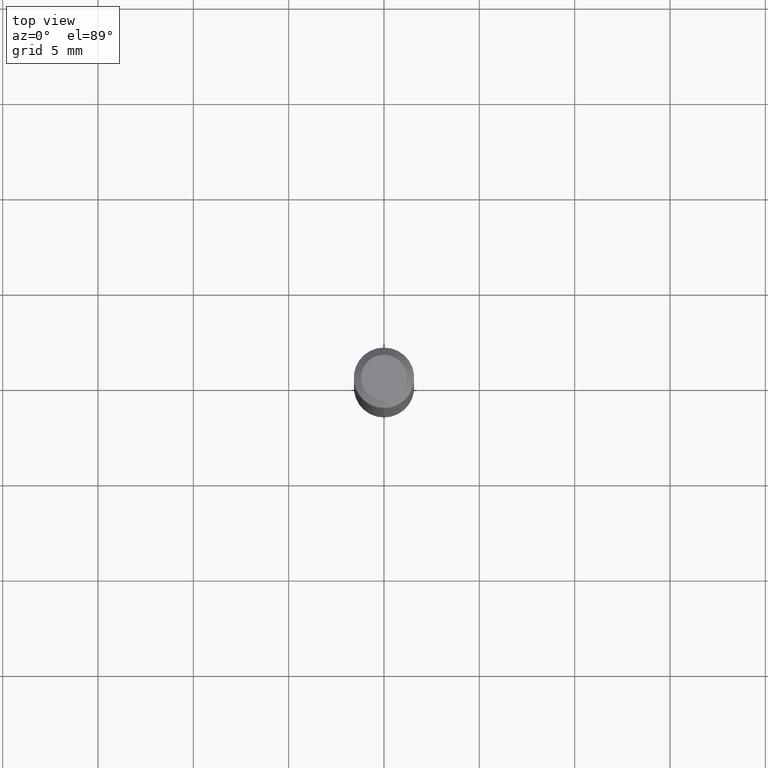
[diagram: clean part render]
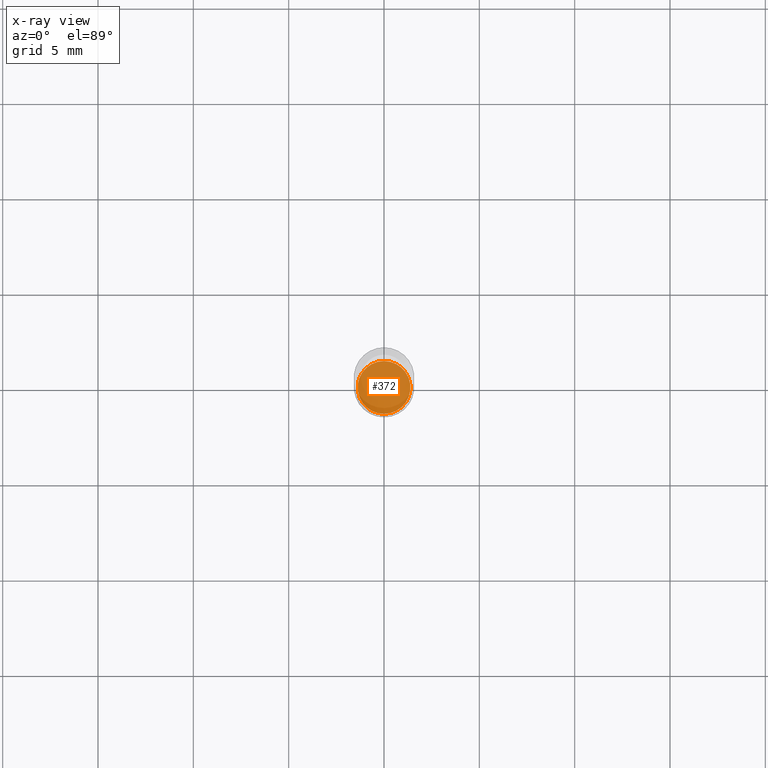
[diagram: x-ray — body ghosted, one internal face saturated and labeled with its STEP entity id]
A machine part, top view, then the same camera in x-ray: the body is ghosted and one INTERNAL B-rep face — a face not visible from any outside direction — is saturated and labeled: STEP entity #372.
In plain terms, the highlighted planar face has unit normal (-0, 0, 1).
Its self-contained STEP definition (entity closure, byte-faithful):
#20 = ORIENTED_EDGE ( 'NONE', *, *, #507, .F. ) ;
#65 = EDGE_CURVE ( 'NONE', #132, #440, #66, .T. ) ;
#66 = CIRCLE ( 'NONE', #285, 0.05450000000000000677 ) ;
#78 = CARTESIAN_POINT ( 'NONE',  ( 2.861301397876957159E-29, -4.084885815465104466E-15, -1.170000000000000151 ) ) ;
#120 = PLANE ( 'NONE',  #457 ) ;
#126 = CIRCLE ( 'NONE', #135, 0.05450000000000000677 ) ;
#132 = VERTEX_POINT ( 'NONE', #197 ) ;
#135 = AXIS2_PLACEMENT_3D ( 'NONE', #78, #323, #208 ) ;
#197 = CARTESIAN_POINT ( 'NONE',  ( 3.890221478286836949E-16, 0.05449999999999592670, -1.170000000000000151 ) ) ;
#207 = DIRECTION ( 'NONE',  ( -2.445556750322185455E-29, 3.491355397833421565E-15, 1.000000000000000000 ) ) ;
#208 = DIRECTION ( 'NONE',  ( -6.982962677686266711E-15, -1.000000000000000000, 2.506282562994736586E-15 ) ) ;
#247 = CARTESIAN_POINT ( 'NONE',  ( 2.861301397876957159E-29, -4.084885815465104466E-15, -1.170000000000000151 ) ) ;
#283 = FACE_OUTER_BOUND ( 'NONE', #488, .T. ) ;
#285 = AXIS2_PLACEMENT_3D ( 'NONE', #395, #441, #512 ) ;
#287 = CARTESIAN_POINT ( 'NONE',  ( -3.805714659338729375E-16, -0.05450000000000408684, -1.169999999999999929 ) ) ;
#323 = DIRECTION ( 'NONE',  ( -2.445556750322185455E-29, 3.491355397833421960E-15, 1.000000000000000000 ) ) ;
#330 = DIRECTION ( 'NONE',  ( -6.982962677686265922E-15, -1.000000000000000000, 3.491355397833421565E-15 ) ) ;
#372 = ADVANCED_FACE ( 'NONE', ( #283 ), #120, .F. ) ;
#395 = CARTESIAN_POINT ( 'NONE',  ( 2.861301397876957159E-29, -4.084885815465104466E-15, -1.170000000000000151 ) ) ;
#429 = ORIENTED_EDGE ( 'NONE', *, *, #65, .F. ) ;
#440 = VERTEX_POINT ( 'NONE', #287 ) ;
#441 = DIRECTION ( 'NONE',  ( -2.445556750322185455E-29, 3.491355397833421960E-15, 1.000000000000000000 ) ) ;
#457 = AXIS2_PLACEMENT_3D ( 'NONE', #247, #207, #330 ) ;
#488 = EDGE_LOOP ( 'NONE', ( #20, #429 ) ) ;
#507 = EDGE_CURVE ( 'NONE', #440, #132, #126, .T. ) ;
#512 = DIRECTION ( 'NONE',  ( -6.982962677686266711E-15, -1.000000000000000000, 2.506282562994736586E-15 ) ) ;